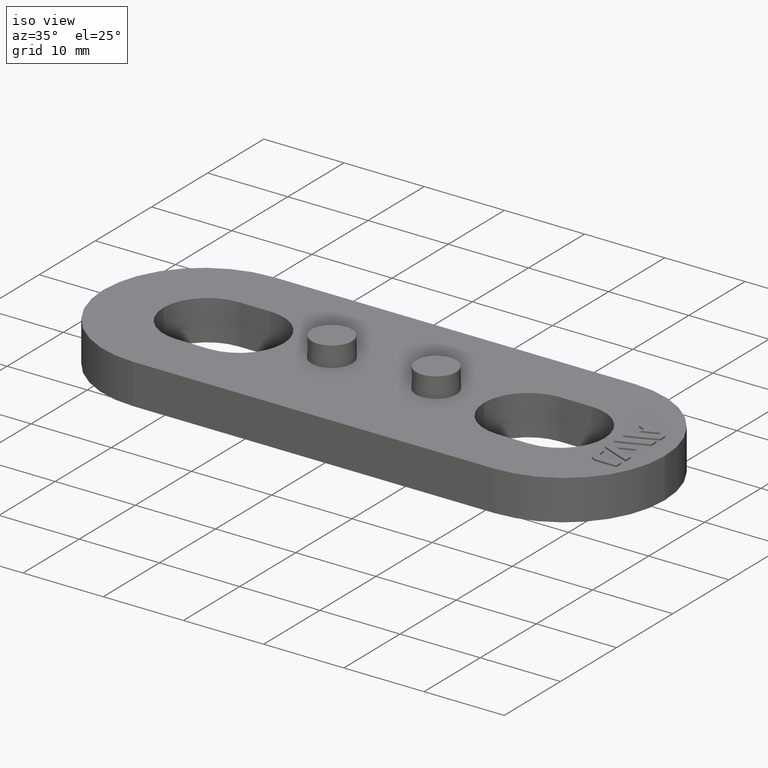
[diagram: clean part render]
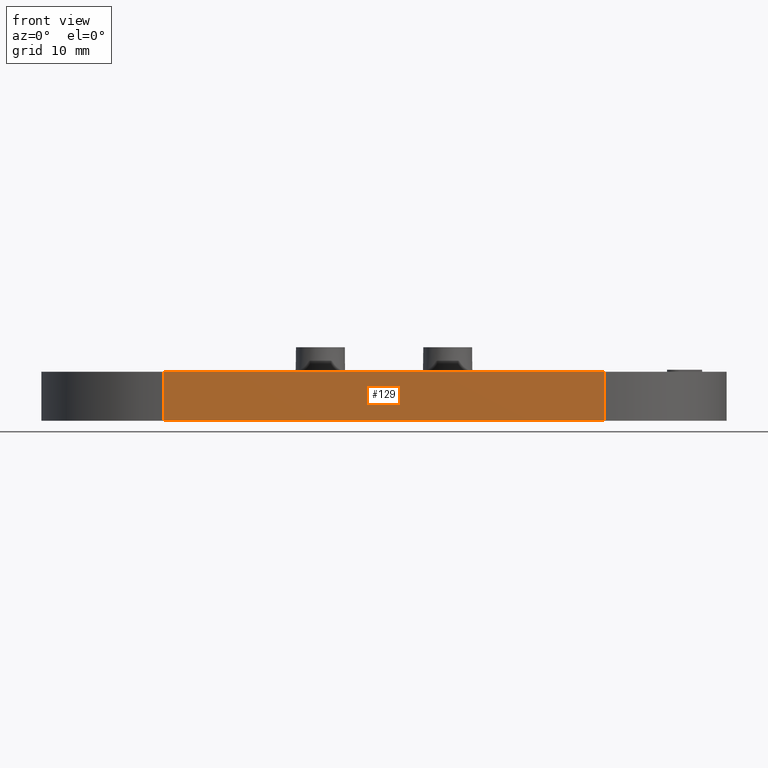
[diagram: tour spotlight — one face highlighted and labeled with its STEP entity id]
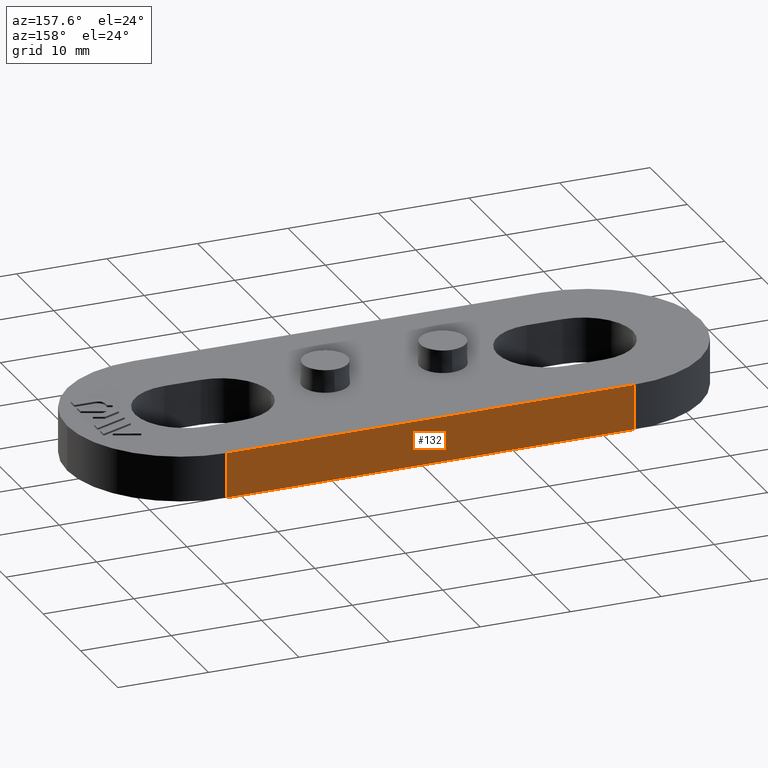
[diagram: tour spotlight — one face highlighted and labeled with its STEP entity id]
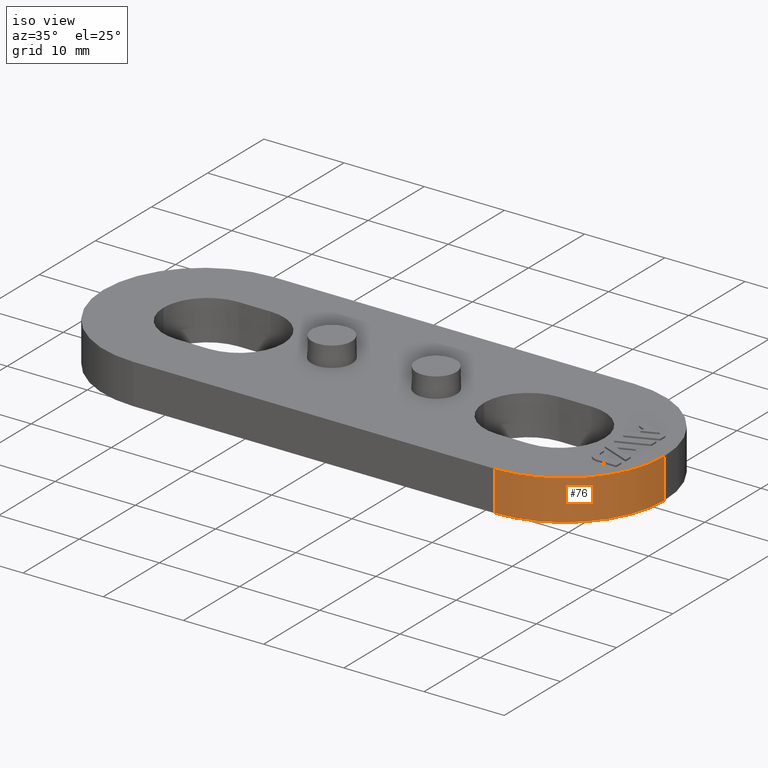
[diagram: tour spotlight — one face highlighted and labeled with its STEP entity id]
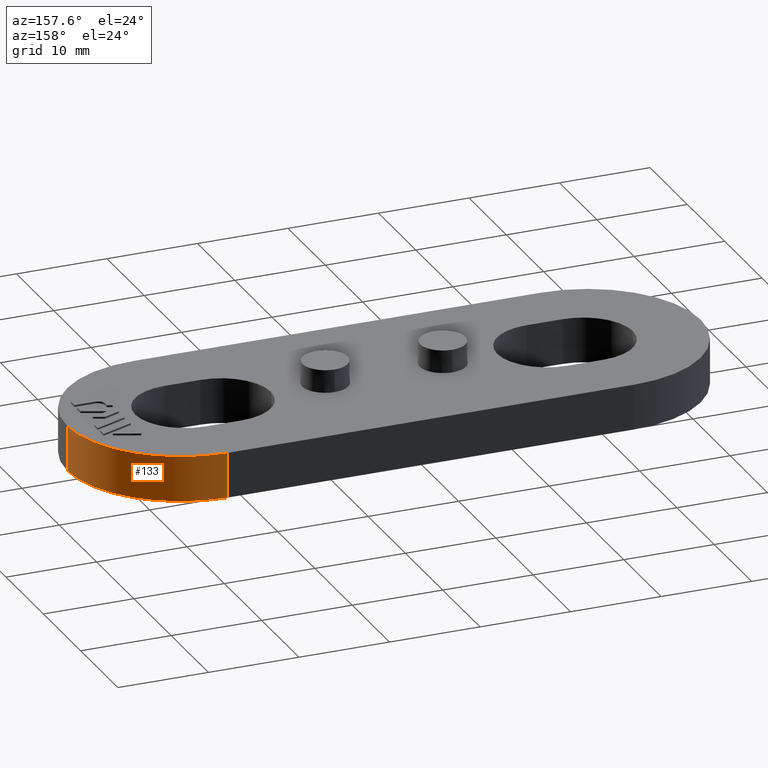
[diagram: tour spotlight — one face highlighted and labeled with its STEP entity id]
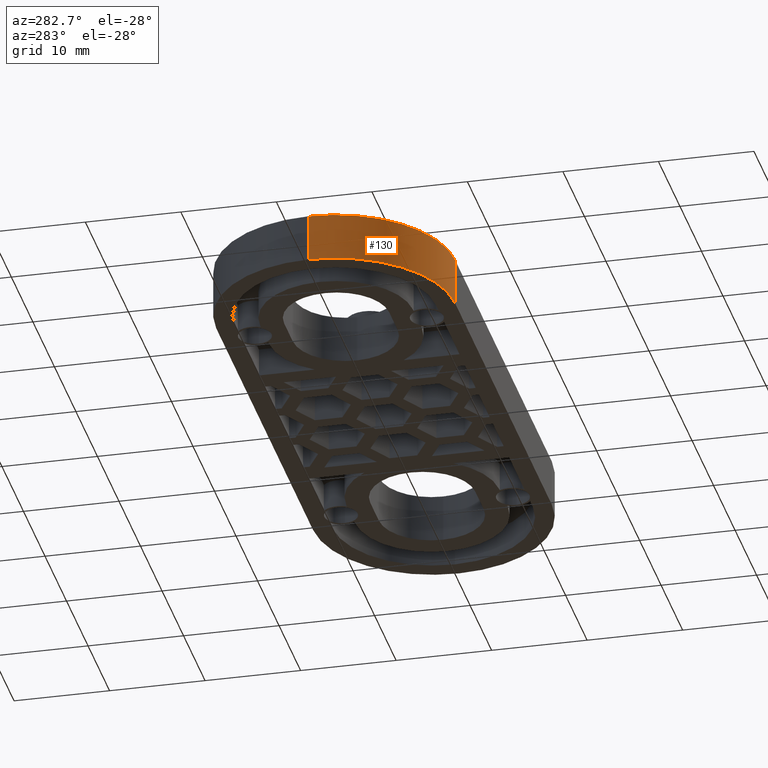
[diagram: tour spotlight — one face highlighted and labeled with its STEP entity id]
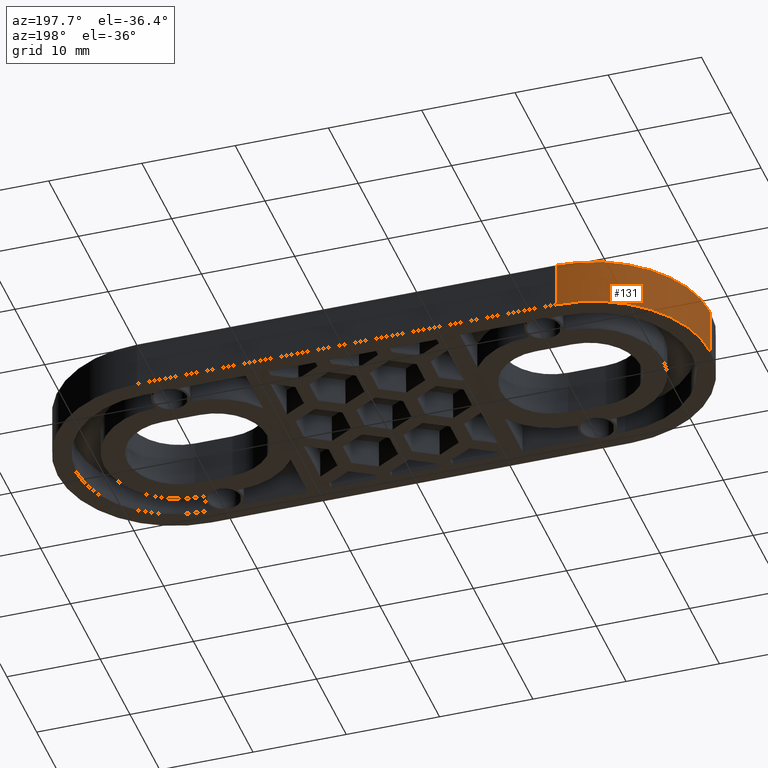
[diagram: tour spotlight — one face highlighted and labeled with its STEP entity id]
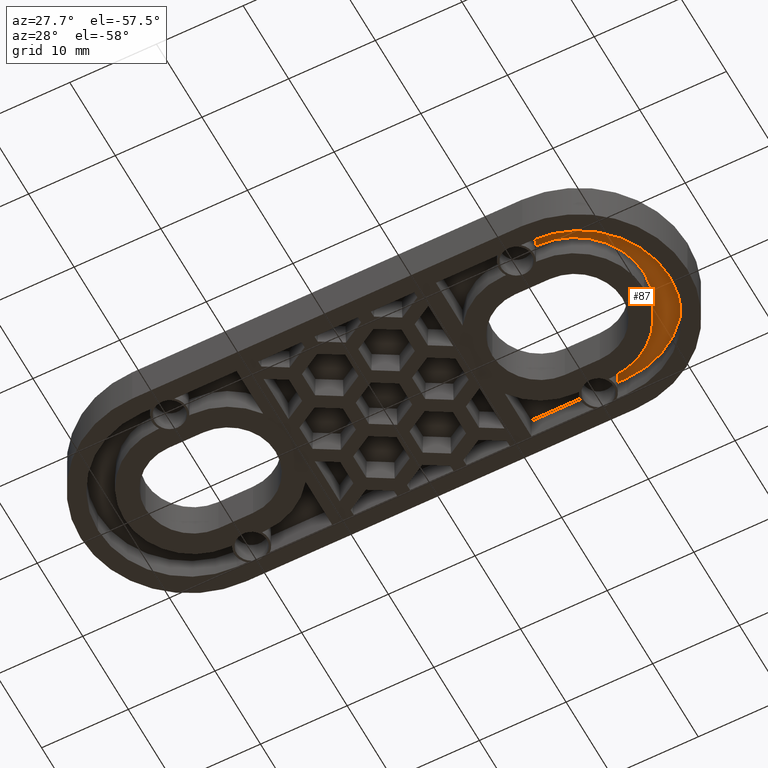
[diagram: tour spotlight — one face highlighted and labeled with its STEP entity id]
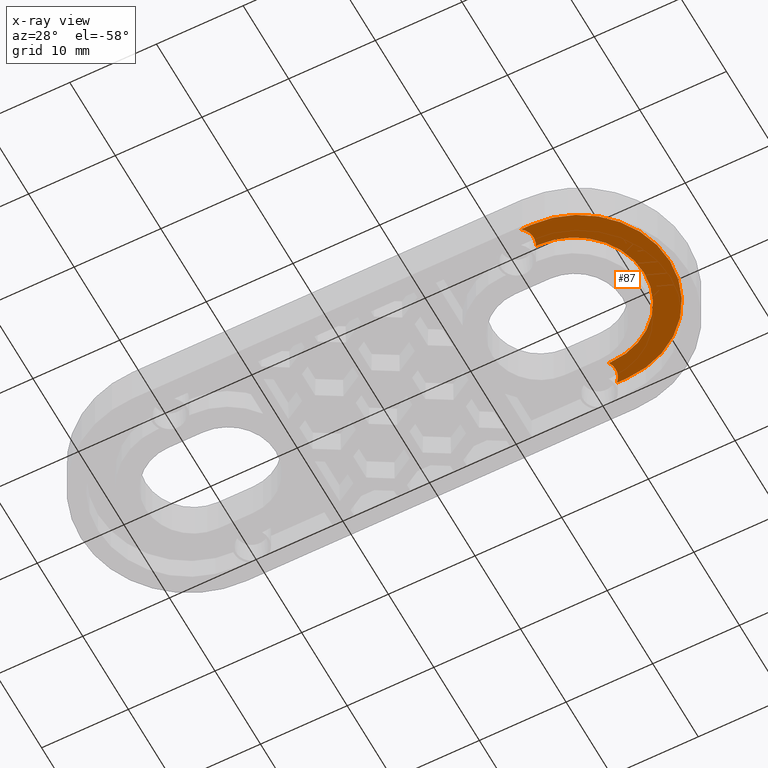
[diagram: x-ray of the same camera — body ghosted, this tour face saturated]
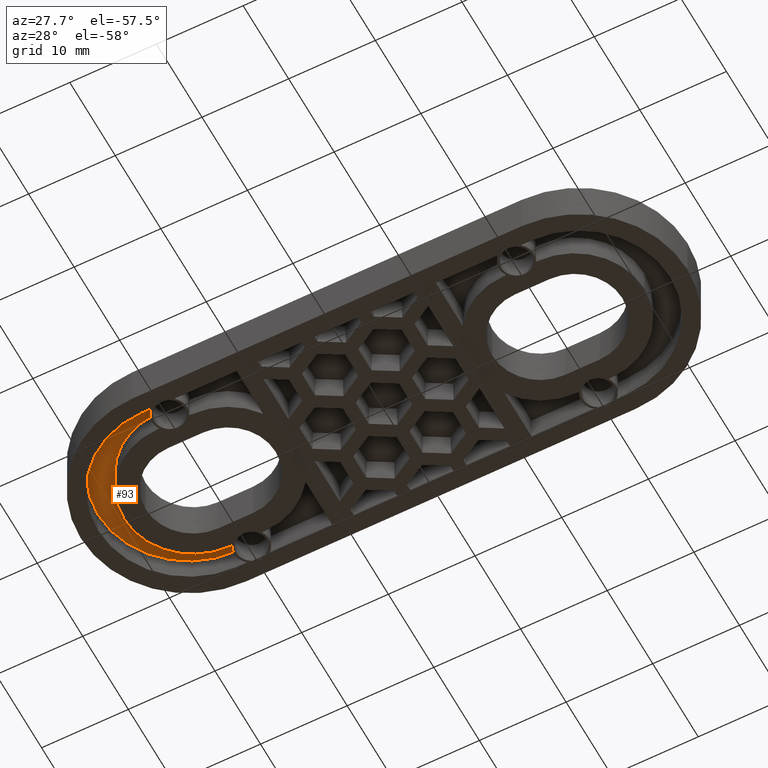
[diagram: tour spotlight — one face highlighted and labeled with its STEP entity id]
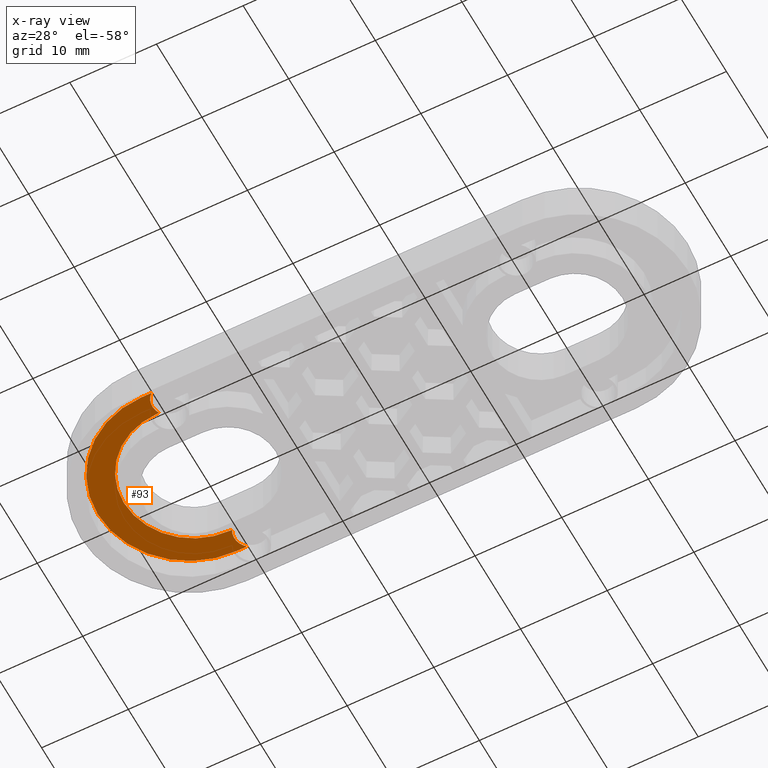
[diagram: x-ray of the same camera — body ghosted, this tour face saturated]
A machine part: a face-by-face anatomy tour. The part has 216 B-rep faces; the first image is the clean iso view, then the 8 largest visible faces are spotlighted one at a time (largest first), each with its STEP entity span.

Face 1 — front view, entity #129. In plain terms, the highlighted planar face has unit normal (0, 1, -0).
Definition (entity closure, byte-faithful):
#129 = ADVANCED_FACE( '', ( #438 ), #439, .F. );
#438 = FACE_OUTER_BOUND( '', #914, .T. );
#439 = PLANE( '', #915 );
#914 = EDGE_LOOP( '', ( #1844, #1845, #1846, #1847 ) );
#915 = AXIS2_PLACEMENT_3D( '', #1848, #1849, #1850 );
#1844 = ORIENTED_EDGE( '', *, *, #2982, .T. );
#1845 = ORIENTED_EDGE( '', *, *, #3337, .F. );
#1846 = ORIENTED_EDGE( '', *, *, #3320, .F. );
#1847 = ORIENTED_EDGE( '', *, *, #3008, .T. );
#1848 = CARTESIAN_POINT( '', ( 22.5000000000000, -12.5000000000000, 0.000000000000000 ) );
#1849 = DIRECTION( '', ( 0.000000000000000, 1.00000000000000, -6.12303176911189E-017 ) );
#1850 = DIRECTION( '', ( 1.00000000000000, 0.000000000000000, 0.000000000000000 ) );
#2982 = EDGE_CURVE( '', #3529, #3537, #3539, .T. );
#3008 = EDGE_CURVE( '', #3590, #3529, #3591, .T. );
#3320 = EDGE_CURVE( '', #3590, #4157, #4158, .T. );
#3337 = EDGE_CURVE( '', #4157, #3537, #4190, .T. );
#3529 = VERTEX_POINT( '', #4436 );
#3537 = VERTEX_POINT( '', #4445 );
#3539 = LINE( '', #4447, #4448 );
#3590 = VERTEX_POINT( '', #4516 );
#3591 = LINE( '', #4517, #4518 );
#4157 = VERTEX_POINT( '', #5349 );
#4158 = LINE( '', #5350, #5351 );
#4190 = LINE( '', #5388, #5389 );
#4436 = CARTESIAN_POINT( '', ( 22.5000000000000, -12.5000000000000, 5.00000000000000 ) );
#4445 = CARTESIAN_POINT( '', ( -22.5000000000000, -12.5000000000000, 5.00000000000000 ) );
#4447 = CARTESIAN_POINT( '', ( 22.5000000000000, -12.5000000000000, 5.00000000000000 ) );
#4448 = VECTOR( '', #5774, 1000.00000000000 );
#4516 = CARTESIAN_POINT( '', ( 22.5000000000000, -12.5000000000000, 0.000000000000000 ) );
#4517 = CARTESIAN_POINT( '', ( 22.5000000000000, -12.5000000000000, 0.000000000000000 ) );
#4518 = VECTOR( '', #5816, 1000.00000000000 );
#5349 = CARTESIAN_POINT( '', ( -22.5000000000000, -12.5000000000000, 0.000000000000000 ) );
#5350 = CARTESIAN_POINT( '', ( 22.5000000000000, -12.5000000000000, 0.000000000000000 ) );
#5351 = VECTOR( '', #6220, 1000.00000000000 );
#5388 = CARTESIAN_POINT( '', ( -22.5000000000000, -12.5000000000000, 0.000000000000000 ) );
#5389 = VECTOR( '', #6259, 1000.00000000000 );
#5774 = DIRECTION( '', ( -1.00000000000000, 0.000000000000000, 0.000000000000000 ) );
#5816 = DIRECTION( '', ( 0.000000000000000, 6.12303176911189E-017, 1.00000000000000 ) );
#6220 = DIRECTION( '', ( -1.00000000000000, 0.000000000000000, 0.000000000000000 ) );
#6259 = DIRECTION( '', ( 0.000000000000000, 6.12303176911189E-017, 1.00000000000000 ) );

Face 2 — auxiliary view, entity #132. In plain terms, the highlighted planar face has unit normal (0, -1, 0).
Definition (entity closure, byte-faithful):
#132 = ADVANCED_FACE( '', ( #444 ), #445, .F. );
#444 = FACE_OUTER_BOUND( '', #920, .T. );
#445 = PLANE( '', #921 );
#920 = EDGE_LOOP( '', ( #1865, #1866, #1867, #1868 ) );
#921 = AXIS2_PLACEMENT_3D( '', #1869, #1870, #1871 );
#1865 = ORIENTED_EDGE( '', *, *, #2979, .T. );
#1866 = ORIENTED_EDGE( '', *, *, #3340, .F. );
#1867 = ORIENTED_EDGE( '', *, *, #3323, .F. );
#1868 = ORIENTED_EDGE( '', *, *, #3339, .T. );
#1869 = CARTESIAN_POINT( '', ( -22.5000000000000, 12.5000000000000, -1.53075794227797E-015 ) );
#1870 = DIRECTION( '', ( 0.000000000000000, -1.00000000000000, 6.12303176911189E-017 ) );
#1871 = DIRECTION( '', ( -1.00000000000000, 0.000000000000000, 0.000000000000000 ) );
#2979 = EDGE_CURVE( '', #3533, #3531, #3534, .T. );
#3323 = EDGE_CURVE( '', #4161, #4163, #4164, .T. );
#3339 = EDGE_CURVE( '', #4161, #3533, #4192, .T. );
#3340 = EDGE_CURVE( '', #4163, #3531, #4193, .T. );
#3531 = VERTEX_POINT( '', #4438 );
#3533 = VERTEX_POINT( '', #4440 );
#3534 = LINE( '', #4441, #4442 );
#4161 = VERTEX_POINT( '', #5354 );
#4163 = VERTEX_POINT( '', #5356 );
#4164 = LINE( '', #5357, #5358 );
#4192 = LINE( '', #5392, #5393 );
#4193 = LINE( '', #5394, #5395 );
#4438 = CARTESIAN_POINT( '', ( 22.5000000000000, 12.5000000000000, 5.00000000000000 ) );
#4440 = CARTESIAN_POINT( '', ( -22.5000000000000, 12.5000000000000, 5.00000000000000 ) );
#4441 = CARTESIAN_POINT( '', ( -22.5000000000000, 12.5000000000000, 5.00000000000000 ) );
#4442 = VECTOR( '', #5767, 1000.00000000000 );
#5354 = CARTESIAN_POINT( '', ( -22.5000000000000, 12.5000000000000, -1.53075794227797E-015 ) );
#5356 = CARTESIAN_POINT( '', ( 22.5000000000000, 12.5000000000000, -1.53075794227797E-015 ) );
#5357 = CARTESIAN_POINT( '', ( -22.5000000000000, 12.5000000000000, -1.53075794227797E-015 ) );
#5358 = VECTOR( '', #6227, 1000.00000000000 );
#5392 = CARTESIAN_POINT( '', ( -22.5000000000000, 12.5000000000000, -1.53075794227797E-015 ) );
#5393 = VECTOR( '', #6261, 1000.00000000000 );
#5394 = CARTESIAN_POINT( '', ( 22.5000000000000, 12.5000000000000, -1.53075794227797E-015 ) );
#5395 = VECTOR( '', #6262, 1000.00000000000 );
#5767 = DIRECTION( '', ( 1.00000000000000, 0.000000000000000, 0.000000000000000 ) );
#6227 = DIRECTION( '', ( 1.00000000000000, 0.000000000000000, 0.000000000000000 ) );
#6261 = DIRECTION( '', ( 0.000000000000000, 6.12303176911189E-017, 1.00000000000000 ) );
#6262 = DIRECTION( '', ( 0.000000000000000, 6.12303176911189E-017, 1.00000000000000 ) );

Face 3 — iso view, entity #76. In plain terms, the highlighted cylindrical surface (partial cylindrical patch) has radius 12.5 mm, axis along (0, -0, -1).
Definition (entity closure, byte-faithful):
#76 = ADVANCED_FACE( '', ( #303 ), #304, .T. );
#303 = FACE_OUTER_BOUND( '', #779, .T. );
#304 = CYLINDRICAL_SURFACE( '', #780, 12.5000000000000 );
#779 = EDGE_LOOP( '', ( #1295, #1296, #1297, #1298 ) );
#780 = AXIS2_PLACEMENT_3D( '', #1299, #1300, #1301 );
#1295 = ORIENTED_EDGE( '', *, *, #2977, .T. );
#1296 = ORIENTED_EDGE( '', *, *, #3008, .F. );
#1297 = ORIENTED_EDGE( '', *, *, #3009, .F. );
#1298 = ORIENTED_EDGE( '', *, *, #3010, .T. );
#1299 = CARTESIAN_POINT( '', ( 22.5000000000000, 0.000000000000000, -7.65378971138986E-016 ) );
#1300 = DIRECTION( '', ( 0.000000000000000, -6.12303176911189E-017, -1.00000000000000 ) );
#1301 = DIRECTION( '', ( 0.000000000000000, 1.00000000000000, -6.12303176911189E-017 ) );
#2977 = EDGE_CURVE( '', #3528, #3529, #3530, .T. );
#3008 = EDGE_CURVE( '', #3590, #3529, #3591, .T. );
#3009 = EDGE_CURVE( '', #3592, #3590, #3593, .T. );
#3010 = EDGE_CURVE( '', #3592, #3528, #3594, .T. );
#3528 = VERTEX_POINT( '', #4435 );
#3529 = VERTEX_POINT( '', #4436 );
#3530 = CIRCLE( '', #4437, 12.5000000000000 );
#3590 = VERTEX_POINT( '', #4516 );
#3591 = LINE( '', #4517, #4518 );
#3592 = VERTEX_POINT( '', #4519 );
#3593 = CIRCLE( '', #4520, 12.5000000000000 );
#3594 = LINE( '', #4521, #4522 );
#4435 = CARTESIAN_POINT( '', ( 35.0000000000000, 0.000000000000000, 5.00000000000000 ) );
#4436 = CARTESIAN_POINT( '', ( 22.5000000000000, -12.5000000000000, 5.00000000000000 ) );
#4437 = AXIS2_PLACEMENT_3D( '', #5761, #5762, #5763 );
#4516 = CARTESIAN_POINT( '', ( 22.5000000000000, -12.5000000000000, 0.000000000000000 ) );
#4517 = CARTESIAN_POINT( '', ( 22.5000000000000, -12.5000000000000, 0.000000000000000 ) );
#4518 = VECTOR( '', #5816, 1000.00000000000 );
#4519 = CARTESIAN_POINT( '', ( 35.0000000000000, 0.000000000000000, -7.65378971138986E-016 ) );
#4520 = AXIS2_PLACEMENT_3D( '', #5817, #5818, #5819 );
#4521 = CARTESIAN_POINT( '', ( 35.0000000000000, 0.000000000000000, -7.65378971138986E-016 ) );
#4522 = VECTOR( '', #5820, 1000.00000000000 );
#5761 = CARTESIAN_POINT( '', ( 22.5000000000000, 0.000000000000000, 5.00000000000000 ) );
#5762 = DIRECTION( '', ( 0.000000000000000, -6.12303176911189E-017, -1.00000000000000 ) );
#5763 = DIRECTION( '', ( 0.000000000000000, 1.00000000000000, -6.12303176911189E-017 ) );
#5816 = DIRECTION( '', ( 0.000000000000000, 6.12303176911189E-017, 1.00000000000000 ) );
#5817 = CARTESIAN_POINT( '', ( 22.5000000000000, 0.000000000000000, -7.65378971138986E-016 ) );
#5818 = DIRECTION( '', ( 0.000000000000000, -6.12303176911189E-017, -1.00000000000000 ) );
#5819 = DIRECTION( '', ( 0.000000000000000, 1.00000000000000, -6.12303176911189E-017 ) );
#5820 = DIRECTION( '', ( 0.000000000000000, 6.12303176911189E-017, 1.00000000000000 ) );

Face 4 — auxiliary view, entity #133. In plain terms, the highlighted cylindrical surface (partial cylindrical patch) has radius 12.5 mm, axis along (0, -0, -1).
Definition (entity closure, byte-faithful):
#133 = ADVANCED_FACE( '', ( #446 ), #447, .T. );
#446 = FACE_OUTER_BOUND( '', #922, .T. );
#447 = CYLINDRICAL_SURFACE( '', #923, 12.5000000000000 );
#922 = EDGE_LOOP( '', ( #1872, #1873, #1874, #1875 ) );
#923 = AXIS2_PLACEMENT_3D( '', #1876, #1877, #1878 );
#1872 = ORIENTED_EDGE( '', *, *, #2978, .T. );
#1873 = ORIENTED_EDGE( '', *, *, #3010, .F. );
#1874 = ORIENTED_EDGE( '', *, *, #3324, .F. );
#1875 = ORIENTED_EDGE( '', *, *, #3340, .T. );
#1876 = CARTESIAN_POINT( '', ( 22.5000000000000, 0.000000000000000, -7.65378971138986E-016 ) );
#1877 = DIRECTION( '', ( 0.000000000000000, -6.12303176911189E-017, -1.00000000000000 ) );
#1878 = DIRECTION( '', ( 0.000000000000000, 1.00000000000000, -6.12303176911189E-017 ) );
#2978 = EDGE_CURVE( '', #3531, #3528, #3532, .T. );
#3010 = EDGE_CURVE( '', #3592, #3528, #3594, .T. );
#3324 = EDGE_CURVE( '', #4163, #3592, #4165, .T. );
#3340 = EDGE_CURVE( '', #4163, #3531, #4193, .T. );
#3528 = VERTEX_POINT( '', #4435 );
#3531 = VERTEX_POINT( '', #4438 );
#3532 = CIRCLE( '', #4439, 12.5000000000000 );
#3592 = VERTEX_POINT( '', #4519 );
#3594 = LINE( '', #4521, #4522 );
#4163 = VERTEX_POINT( '', #5356 );
#4165 = CIRCLE( '', #5359, 12.5000000000000 );
#4193 = LINE( '', #5394, #5395 );
#4435 = CARTESIAN_POINT( '', ( 35.0000000000000, 0.000000000000000, 5.00000000000000 ) );
#4438 = CARTESIAN_POINT( '', ( 22.5000000000000, 12.5000000000000, 5.00000000000000 ) );
#4439 = AXIS2_PLACEMENT_3D( '', #5764, #5765, #5766 );
#4519 = CARTESIAN_POINT( '', ( 35.0000000000000, 0.000000000000000, -7.65378971138986E-016 ) );
#4521 = CARTESIAN_POINT( '', ( 35.0000000000000, 0.000000000000000, -7.65378971138986E-016 ) );
#4522 = VECTOR( '', #5820, 1000.00000000000 );
#5356 = CARTESIAN_POINT( '', ( 22.5000000000000, 12.5000000000000, -1.53075794227797E-015 ) );
#5359 = AXIS2_PLACEMENT_3D( '', #6228, #6229, #6230 );
#5394 = CARTESIAN_POINT( '', ( 22.5000000000000, 12.5000000000000, -1.53075794227797E-015 ) );
#5395 = VECTOR( '', #6262, 1000.00000000000 );
#5764 = CARTESIAN_POINT( '', ( 22.5000000000000, 0.000000000000000, 5.00000000000000 ) );
#5765 = DIRECTION( '', ( 0.000000000000000, -6.12303176911189E-017, -1.00000000000000 ) );
#5766 = DIRECTION( '', ( 0.000000000000000, 1.00000000000000, -6.12303176911189E-017 ) );
#5820 = DIRECTION( '', ( 0.000000000000000, 6.12303176911189E-017, 1.00000000000000 ) );
#6228 = CARTESIAN_POINT( '', ( 22.5000000000000, 0.000000000000000, -7.65378971138986E-016 ) );
#6229 = DIRECTION( '', ( 0.000000000000000, -6.12303176911189E-017, -1.00000000000000 ) );
#6230 = DIRECTION( '', ( 0.000000000000000, 1.00000000000000, -6.12303176911189E-017 ) );
#6262 = DIRECTION( '', ( 0.000000000000000, 6.12303176911189E-017, 1.00000000000000 ) );

Face 5 — auxiliary view, entity #130. In plain terms, the highlighted cylindrical surface (partial cylindrical patch) has radius 12.5 mm, axis along (0, -0, -1).
Definition (entity closure, byte-faithful):
#130 = ADVANCED_FACE( '', ( #440 ), #441, .T. );
#440 = FACE_OUTER_BOUND( '', #916, .T. );
#441 = CYLINDRICAL_SURFACE( '', #917, 12.5000000000000 );
#916 = EDGE_LOOP( '', ( #1851, #1852, #1853, #1854 ) );
#917 = AXIS2_PLACEMENT_3D( '', #1855, #1856, #1857 );
#1851 = ORIENTED_EDGE( '', *, *, #2981, .T. );
#1852 = ORIENTED_EDGE( '', *, *, #3338, .F. );
#1853 = ORIENTED_EDGE( '', *, *, #3321, .F. );
#1854 = ORIENTED_EDGE( '', *, *, #3337, .T. );
#1855 = CARTESIAN_POINT( '', ( -22.5000000000000, 0.000000000000000, -7.65378971138986E-016 ) );
#1856 = DIRECTION( '', ( 0.000000000000000, -6.12303176911189E-017, -1.00000000000000 ) );
#1857 = DIRECTION( '', ( 0.000000000000000, 1.00000000000000, -6.12303176911189E-017 ) );
#2981 = EDGE_CURVE( '', #3537, #3535, #3538, .T. );
#3321 = EDGE_CURVE( '', #4157, #4159, #4160, .T. );
#3337 = EDGE_CURVE( '', #4157, #3537, #4190, .T. );
#3338 = EDGE_CURVE( '', #4159, #3535, #4191, .T. );
#3535 = VERTEX_POINT( '', #4443 );
#3537 = VERTEX_POINT( '', #4445 );
#3538 = CIRCLE( '', #4446, 12.5000000000000 );
#4157 = VERTEX_POINT( '', #5349 );
#4159 = VERTEX_POINT( '', #5352 );
#4160 = CIRCLE( '', #5353, 12.5000000000000 );
#4190 = LINE( '', #5388, #5389 );
#4191 = LINE( '', #5390, #5391 );
#4443 = CARTESIAN_POINT( '', ( -35.0000000000000, -1.73472347597681E-015, 5.00000000000000 ) );
#4445 = CARTESIAN_POINT( '', ( -22.5000000000000, -12.5000000000000, 5.00000000000000 ) );
#4446 = AXIS2_PLACEMENT_3D( '', #5771, #5772, #5773 );
#5349 = CARTESIAN_POINT( '', ( -22.5000000000000, -12.5000000000000, 0.000000000000000 ) );
#5352 = CARTESIAN_POINT( '', ( -35.0000000000000, -1.73472347597681E-015, -7.65378971138986E-016 ) );
#5353 = AXIS2_PLACEMENT_3D( '', #6221, #6222, #6223 );
#5388 = CARTESIAN_POINT( '', ( -22.5000000000000, -12.5000000000000, 0.000000000000000 ) );
#5389 = VECTOR( '', #6259, 1000.00000000000 );
#5390 = CARTESIAN_POINT( '', ( -35.0000000000000, -1.73472347597681E-015, -7.65378971138986E-016 ) );
#5391 = VECTOR( '', #6260, 1000.00000000000 );
#5771 = CARTESIAN_POINT( '', ( -22.5000000000000, 0.000000000000000, 5.00000000000000 ) );
#5772 = DIRECTION( '', ( 0.000000000000000, -6.12303176911189E-017, -1.00000000000000 ) );
#5773 = DIRECTION( '', ( 0.000000000000000, 1.00000000000000, -6.12303176911189E-017 ) );
#6221 = CARTESIAN_POINT( '', ( -22.5000000000000, 0.000000000000000, -7.65378971138986E-016 ) );
#6222 = DIRECTION( '', ( 0.000000000000000, -6.12303176911189E-017, -1.00000000000000 ) );
#6223 = DIRECTION( '', ( 0.000000000000000, 1.00000000000000, -6.12303176911189E-017 ) );
#6259 = DIRECTION( '', ( 0.000000000000000, 6.12303176911189E-017, 1.00000000000000 ) );
#6260 = DIRECTION( '', ( 0.000000000000000, 6.12303176911189E-017, 1.00000000000000 ) );

Face 6 — auxiliary view, entity #131. In plain terms, the highlighted cylindrical surface (partial cylindrical patch) has radius 12.5 mm, axis along (0, -0, -1).
Definition (entity closure, byte-faithful):
#131 = ADVANCED_FACE( '', ( #442 ), #443, .T. );
#442 = FACE_OUTER_BOUND( '', #918, .T. );
#443 = CYLINDRICAL_SURFACE( '', #919, 12.5000000000000 );
#918 = EDGE_LOOP( '', ( #1858, #1859, #1860, #1861 ) );
#919 = AXIS2_PLACEMENT_3D( '', #1862, #1863, #1864 );
#1858 = ORIENTED_EDGE( '', *, *, #2980, .T. );
#1859 = ORIENTED_EDGE( '', *, *, #3339, .F. );
#1860 = ORIENTED_EDGE( '', *, *, #3322, .F. );
#1861 = ORIENTED_EDGE( '', *, *, #3338, .T. );
#1862 = CARTESIAN_POINT( '', ( -22.5000000000000, 0.000000000000000, -7.65378971138986E-016 ) );
#1863 = DIRECTION( '', ( 0.000000000000000, -6.12303176911189E-017, -1.00000000000000 ) );
#1864 = DIRECTION( '', ( 0.000000000000000, 1.00000000000000, -6.12303176911189E-017 ) );
#2980 = EDGE_CURVE( '', #3535, #3533, #3536, .T. );
#3322 = EDGE_CURVE( '', #4159, #4161, #4162, .T. );
#3338 = EDGE_CURVE( '', #4159, #3535, #4191, .T. );
#3339 = EDGE_CURVE( '', #4161, #3533, #4192, .T. );
#3533 = VERTEX_POINT( '', #4440 );
#3535 = VERTEX_POINT( '', #4443 );
#3536 = CIRCLE( '', #4444, 12.5000000000000 );
#4159 = VERTEX_POINT( '', #5352 );
#4161 = VERTEX_POINT( '', #5354 );
#4162 = CIRCLE( '', #5355, 12.5000000000000 );
#4191 = LINE( '', #5390, #5391 );
#4192 = LINE( '', #5392, #5393 );
#4440 = CARTESIAN_POINT( '', ( -22.5000000000000, 12.5000000000000, 5.00000000000000 ) );
#4443 = CARTESIAN_POINT( '', ( -35.0000000000000, -1.73472347597681E-015, 5.00000000000000 ) );
#4444 = AXIS2_PLACEMENT_3D( '', #5768, #5769, #5770 );
#5352 = CARTESIAN_POINT( '', ( -35.0000000000000, -1.73472347597681E-015, -7.65378971138986E-016 ) );
#5354 = CARTESIAN_POINT( '', ( -22.5000000000000, 12.5000000000000, -1.53075794227797E-015 ) );
#5355 = AXIS2_PLACEMENT_3D( '', #6224, #6225, #6226 );
#5390 = CARTESIAN_POINT( '', ( -35.0000000000000, -1.73472347597681E-015, -7.65378971138986E-016 ) );
#5391 = VECTOR( '', #6260, 1000.00000000000 );
#5392 = CARTESIAN_POINT( '', ( -22.5000000000000, 12.5000000000000, -1.53075794227797E-015 ) );
#5393 = VECTOR( '', #6261, 1000.00000000000 );
#5768 = CARTESIAN_POINT( '', ( -22.5000000000000, 0.000000000000000, 5.00000000000000 ) );
#5769 = DIRECTION( '', ( 0.000000000000000, -6.12303176911189E-017, -1.00000000000000 ) );
#5770 = DIRECTION( '', ( 0.000000000000000, 1.00000000000000, -6.12303176911189E-017 ) );
#6224 = CARTESIAN_POINT( '', ( -22.5000000000000, 0.000000000000000, -7.65378971138986E-016 ) );
#6225 = DIRECTION( '', ( 0.000000000000000, -6.12303176911189E-017, -1.00000000000000 ) );
#6226 = DIRECTION( '', ( 0.000000000000000, 1.00000000000000, -6.12303176911189E-017 ) );
#6260 = DIRECTION( '', ( 0.000000000000000, 6.12303176911189E-017, 1.00000000000000 ) );
#6261 = DIRECTION( '', ( 0.000000000000000, 6.12303176911189E-017, 1.00000000000000 ) );

Face 7 — auxiliary view, entity #87. An x-ray twin of the same camera follows (body ghosted, this face saturated) — the face is partly hidden behind the body. In plain terms, the highlighted planar face has unit normal (0, -0, -1).
Definition (entity closure, byte-faithful):
#87 = ADVANCED_FACE( '', ( #325 ), #326, .T. );
#325 = FACE_OUTER_BOUND( '', #801, .T. );
#326 = PLANE( '', #802 );
#801 = EDGE_LOOP( '', ( #1374, #1375, #1376, #1377, #1378, #1379, #1380, #1381, #1382, #1383 ) );
#802 = AXIS2_PLACEMENT_3D( '', #1384, #1385, #1386 );
#1374 = ORIENTED_EDGE( '', *, *, #3044, .F. );
#1375 = ORIENTED_EDGE( '', *, *, #3045, .F. );
#1376 = ORIENTED_EDGE( '', *, *, #3046, .F. );
#1377 = ORIENTED_EDGE( '', *, *, #3047, .F. );
#1378 = ORIENTED_EDGE( '', *, *, #3048, .F. );
#1379 = ORIENTED_EDGE( '', *, *, #3049, .F. );
#1380 = ORIENTED_EDGE( '', *, *, #3050, .T. );
#1381 = ORIENTED_EDGE( '', *, *, #3051, .T. );
#1382 = ORIENTED_EDGE( '', *, *, #3052, .T. );
#1383 = ORIENTED_EDGE( '', *, *, #3021, .T. );
#1384 = CARTESIAN_POINT( '', ( 22.5000000000000, 0.000000000000000, 3.00000000000000 ) );
#1385 = DIRECTION( '', ( 0.000000000000000, -6.12303176911189E-017, -1.00000000000000 ) );
#1386 = DIRECTION( '', ( 0.000000000000000, -1.00000000000000, 6.12303176911189E-017 ) );
#3021 = EDGE_CURVE( '', #3612, #3609, #3613, .T. );
#3044 = EDGE_CURVE( '', #3655, #3609, #3656, .T. );
#3045 = EDGE_CURVE( '', #3657, #3655, #3658, .T. );
#3046 = EDGE_CURVE( '', #3659, #3657, #3660, .T. );
#3047 = EDGE_CURVE( '', #3661, #3659, #3662, .T. );
#3048 = EDGE_CURVE( '', #3663, #3661, #3664, .T. );
#3049 = EDGE_CURVE( '', #3665, #3663, #3666, .T. );
#3050 = EDGE_CURVE( '', #3665, #3667, #3668, .T. );
#3051 = EDGE_CURVE( '', #3667, #3669, #3670, .T. );
#3052 = EDGE_CURVE( '', #3669, #3612, #3671, .T. );
#3609 = VERTEX_POINT( '', #4545 );
#3612 = VERTEX_POINT( '', #4549 );
#3613 = LINE( '', #4550, #4551 );
#3655 = VERTEX_POINT( '', #4611 );
#3656 = CIRCLE( '', #4612, 2.00000000000000 );
#3657 = VERTEX_POINT( '', #4613 );
#3658 = LINE( '', #4614, #4615 );
#3659 = VERTEX_POINT( '', #4616 );
#3660 = CIRCLE( '', #4617, 7.99999999999999 );
#3661 = VERTEX_POINT( '', #4618 );
#3662 = CIRCLE( '', #4619, 8.00000000000000 );
#3663 = VERTEX_POINT( '', #4620 );
#3664 = LINE( '', #4621, #4622 );
#3665 = VERTEX_POINT( '', #4623 );
#3666 = CIRCLE( '', #4624, 2.00000000000000 );
#3667 = VERTEX_POINT( '', #4625 );
#3668 = LINE( '', #4626, #4627 );
#3669 = VERTEX_POINT( '', #4628 );
#3670 = CIRCLE( '', #4629, 10.5000000000000 );
#3671 = CIRCLE( '', #4630, 10.5000000000000 );
#4545 = CARTESIAN_POINT( '', ( 21.3228756555323, -10.5000000000000, 3.00000000000000 ) );
#4549 = CARTESIAN_POINT( '', ( 22.5000000000000, -10.5000000000000, 3.00000000000000 ) );
#4550 = CARTESIAN_POINT( '', ( 22.5000000000000, -10.5000000000000, 3.00000000000000 ) );
#4551 = VECTOR( '', #5833, 1000.00000000000 );
#4611 = CARTESIAN_POINT( '', ( 21.7320508075689, -7.99999999999999, 3.00000000000000 ) );
#4612 = AXIS2_PLACEMENT_3D( '', #5864, #5865, #5866 );
#4613 = CARTESIAN_POINT( '', ( 22.0000000000000, -7.99999999999999, 3.00000000000000 ) );
#4614 = CARTESIAN_POINT( '', ( 22.5000000000000, -7.99999999999999, 3.00000000000000 ) );
#4615 = VECTOR( '', #5867, 1000.00000000000 );
#4616 = CARTESIAN_POINT( '', ( 30.0000000000000, 3.46944695195361E-015, 3.00000000000000 ) );
#4617 = AXIS2_PLACEMENT_3D( '', #5868, #5869, #5870 );
#4618 = CARTESIAN_POINT( '', ( 22.0000000000000, 8.00000000000000, 3.00000000000000 ) );
#4619 = AXIS2_PLACEMENT_3D( '', #5871, #5872, #5873 );
#4620 = CARTESIAN_POINT( '', ( 21.7320508075689, 8.00000000000000, 3.00000000000000 ) );
#4621 = CARTESIAN_POINT( '', ( 22.5000000000000, 8.00000000000000, 3.00000000000000 ) );
#4622 = VECTOR( '', #5874, 1000.00000000000 );
#4623 = CARTESIAN_POINT( '', ( 21.3228756555323, 10.5000000000000, 3.00000000000000 ) );
#4624 = AXIS2_PLACEMENT_3D( '', #5875, #5876, #5877 );
#4625 = CARTESIAN_POINT( '', ( 22.5000000000000, 10.5000000000000, 3.00000000000000 ) );
#4626 = CARTESIAN_POINT( '', ( -22.5000000000000, 10.5000000000000, 3.00000000000000 ) );
#4627 = VECTOR( '', #5878, 1000.00000000000 );
#4628 = CARTESIAN_POINT( '', ( 33.0000000000000, 0.000000000000000, 3.00000000000000 ) );
#4629 = AXIS2_PLACEMENT_3D( '', #5879, #5880, #5881 );
#4630 = AXIS2_PLACEMENT_3D( '', #5882, #5883, #5884 );
#5833 = DIRECTION( '', ( -1.00000000000000, 0.000000000000000, 0.000000000000000 ) );
#5864 = CARTESIAN_POINT( '', ( 20.0000000000000, -9.00000000000000, 3.00000000000000 ) );
#5865 = DIRECTION( '', ( 6.84227765783601E-049, -6.12303176911189E-017, -1.00000000000000 ) );
#5866 = DIRECTION( '', ( 1.00000000000000, 6.12303176911189E-017, -3.74915180455534E-033 ) );
#5867 = DIRECTION( '', ( -1.00000000000000, -5.78241158658936E-017, 3.54058898467673E-033 ) );
#5868 = CARTESIAN_POINT( '', ( 22.0000000000000, 3.46944695195361E-015, 3.00000000000000 ) );
#5869 = DIRECTION( '', ( 0.000000000000000, -6.12303176911189E-017, -1.00000000000000 ) );
#5870 = DIRECTION( '', ( 0.000000000000000, 1.00000000000000, -6.12303176911189E-017 ) );
#5871 = CARTESIAN_POINT( '', ( 22.0000000000000, 1.73472347597681E-015, 3.00000000000000 ) );
#5872 = DIRECTION( '', ( 0.000000000000000, -6.12303176911189E-017, -1.00000000000000 ) );
#5873 = DIRECTION( '', ( 0.000000000000000, 1.00000000000000, -6.12303176911189E-017 ) );
#5874 = DIRECTION( '', ( 1.00000000000000, 5.78241158658936E-017, -3.54058898467673E-033 ) );
#5875 = CARTESIAN_POINT( '', ( 20.0000000000000, 9.00000000000001, 3.00000000000000 ) );
#5876 = DIRECTION( '', ( 6.84227765783601E-049, -6.12303176911189E-017, -1.00000000000000 ) );
#5877 = DIRECTION( '', ( 1.00000000000000, 6.12303176911189E-017, -3.74915180455534E-033 ) );
#5878 = DIRECTION( '', ( 1.00000000000000, 0.000000000000000, 0.000000000000000 ) );
#5879 = CARTESIAN_POINT( '', ( 22.5000000000000, 0.000000000000000, 3.00000000000000 ) );
#5880 = DIRECTION( '', ( 0.000000000000000, -6.12303176911189E-017, -1.00000000000000 ) );
#5881 = DIRECTION( '', ( 0.000000000000000, 1.00000000000000, -6.12303176911189E-017 ) );
#5882 = CARTESIAN_POINT( '', ( 22.5000000000000, 0.000000000000000, 3.00000000000000 ) );
#5883 = DIRECTION( '', ( 0.000000000000000, -6.12303176911189E-017, -1.00000000000000 ) );
#5884 = DIRECTION( '', ( 0.000000000000000, 1.00000000000000, -6.12303176911189E-017 ) );

Face 8 — auxiliary view, entity #93. An x-ray twin of the same camera follows (body ghosted, this face saturated) — the face is partly hidden behind the body. In plain terms, the highlighted planar face has unit normal (0, -0, -1).
Definition (entity closure, byte-faithful):
#93 = ADVANCED_FACE( '', ( #337 ), #338, .T. );
#337 = FACE_OUTER_BOUND( '', #813, .T. );
#338 = PLANE( '', #814 );
#813 = EDGE_LOOP( '', ( #1422, #1423, #1424, #1425, #1426, #1427, #1428, #1429, #1430, #1431 ) );
#814 = AXIS2_PLACEMENT_3D( '', #1432, #1433, #1434 );
#1422 = ORIENTED_EDGE( '', *, *, #3069, .F. );
#1423 = ORIENTED_EDGE( '', *, *, #3070, .F. );
#1424 = ORIENTED_EDGE( '', *, *, #3071, .F. );
#1425 = ORIENTED_EDGE( '', *, *, #3072, .F. );
#1426 = ORIENTED_EDGE( '', *, *, #3073, .F. );
#1427 = ORIENTED_EDGE( '', *, *, #3074, .F. );
#1428 = ORIENTED_EDGE( '', *, *, #3075, .T. );
#1429 = ORIENTED_EDGE( '', *, *, #3076, .T. );
#1430 = ORIENTED_EDGE( '', *, *, #3077, .T. );
#1431 = ORIENTED_EDGE( '', *, *, #3060, .T. );
#1432 = CARTESIAN_POINT( '', ( 22.5000000000000, 0.000000000000000, 3.00000000000000 ) );
#1433 = DIRECTION( '', ( 0.000000000000000, -6.12303176911189E-017, -1.00000000000000 ) );
#1434 = DIRECTION( '', ( 0.000000000000000, -1.00000000000000, 6.12303176911189E-017 ) );
#3060 = EDGE_CURVE( '', #3685, #3682, #3686, .T. );
#3069 = EDGE_CURVE( '', #3700, #3682, #3701, .T. );
#3070 = EDGE_CURVE( '', #3702, #3700, #3703, .T. );
#3071 = EDGE_CURVE( '', #3704, #3702, #3705, .T. );
#3072 = EDGE_CURVE( '', #3706, #3704, #3707, .T. );
#3073 = EDGE_CURVE( '', #3708, #3706, #3709, .T. );
#3074 = EDGE_CURVE( '', #3710, #3708, #3711, .T. );
#3075 = EDGE_CURVE( '', #3710, #3712, #3713, .T. );
#3076 = EDGE_CURVE( '', #3712, #3714, #3715, .T. );
#3077 = EDGE_CURVE( '', #3714, #3685, #3716, .T. );
#3682 = VERTEX_POINT( '', #4647 );
#3685 = VERTEX_POINT( '', #4651 );
#3686 = LINE( '', #4652, #4653 );
#3700 = VERTEX_POINT( '', #4675 );
#3701 = CIRCLE( '', #4676, 2.00000000000000 );
#3702 = VERTEX_POINT( '', #4677 );
#3703 = LINE( '', #4678, #4679 );
#3704 = VERTEX_POINT( '', #4680 );
#3705 = CIRCLE( '', #4681, 8.00000000000000 );
#3706 = VERTEX_POINT( '', #4682 );
#3707 = CIRCLE( '', #4683, 8.00000000000000 );
#3708 = VERTEX_POINT( '', #4684 );
#3709 = LINE( '', #4685, #4686 );
#3710 = VERTEX_POINT( '', #4687 );
#3711 = CIRCLE( '', #4688, 2.00000000000000 );
#3712 = VERTEX_POINT( '', #4689 );
#3713 = LINE( '', #4690, #4691 );
#3714 = VERTEX_POINT( '', #4692 );
#3715 = CIRCLE( '', #4693, 10.5000000000000 );
#3716 = CIRCLE( '', #4694, 10.5000000000000 );
#4647 = CARTESIAN_POINT( '', ( -21.3228756555323, 10.5000000000000, 3.00000000000000 ) );
#4651 = CARTESIAN_POINT( '', ( -22.5000000000000, 10.5000000000000, 3.00000000000000 ) );
#4652 = CARTESIAN_POINT( '', ( -22.5000000000000, 10.5000000000000, 3.00000000000000 ) );
#4653 = VECTOR( '', #5892, 1000.00000000000 );
#4675 = CARTESIAN_POINT( '', ( -21.7320508075688, 8.00000000000000, 3.00000000000000 ) );
#4676 = AXIS2_PLACEMENT_3D( '', #5901, #5902, #5903 );
#4677 = CARTESIAN_POINT( '', ( -22.0000000000000, 8.00000000000000, 3.00000000000000 ) );
#4678 = CARTESIAN_POINT( '', ( 22.5000000000000, 8.00000000000000, 3.00000000000000 ) );
#4679 = VECTOR( '', #5904, 1000.00000000000 );
#4680 = CARTESIAN_POINT( '', ( -30.0000000000000, 6.93889390390723E-015, 3.00000000000000 ) );
#4681 = AXIS2_PLACEMENT_3D( '', #5905, #5906, #5907 );
#4682 = CARTESIAN_POINT( '', ( -22.0000000000000, -7.99999999999999, 3.00000000000000 ) );
#4683 = AXIS2_PLACEMENT_3D( '', #5908, #5909, #5910 );
#4684 = CARTESIAN_POINT( '', ( -21.7320508075688, -7.99999999999999, 3.00000000000000 ) );
#4685 = CARTESIAN_POINT( '', ( 22.5000000000000, -7.99999999999999, 3.00000000000000 ) );
#4686 = VECTOR( '', #5911, 1000.00000000000 );
#4687 = CARTESIAN_POINT( '', ( -21.3228756555323, -10.5000000000000, 3.00000000000000 ) );
#4688 = AXIS2_PLACEMENT_3D( '', #5912, #5913, #5914 );
#4689 = CARTESIAN_POINT( '', ( -22.5000000000000, -10.5000000000000, 3.00000000000000 ) );
#4690 = CARTESIAN_POINT( '', ( 22.5000000000000, -10.5000000000000, 3.00000000000000 ) );
#4691 = VECTOR( '', #5915, 1000.00000000000 );
#4692 = CARTESIAN_POINT( '', ( -33.0000000000000, -1.73472347597681E-015, 3.00000000000000 ) );
#4693 = AXIS2_PLACEMENT_3D( '', #5916, #5917, #5918 );
#4694 = AXIS2_PLACEMENT_3D( '', #5919, #5920, #5921 );
#5892 = DIRECTION( '', ( 1.00000000000000, 0.000000000000000, 0.000000000000000 ) );
#5901 = CARTESIAN_POINT( '', ( -20.0000000000000, 9.00000000000001, 3.00000000000000 ) );
#5902 = DIRECTION( '', ( 6.84227765783601E-049, -6.12303176911189E-017, -1.00000000000000 ) );
#5903 = DIRECTION( '', ( 1.00000000000000, 6.12303176911189E-017, -3.74915180455534E-033 ) );
#5904 = DIRECTION( '', ( 1.00000000000000, 1.15648231731787E-016, -7.08117796935346E-033 ) );
#5905 = CARTESIAN_POINT( '', ( -22.0000000000000, 0.000000000000000, 3.00000000000000 ) );
#5906 = DIRECTION( '', ( 0.000000000000000, -6.12303176911189E-017, -1.00000000000000 ) );
#5907 = DIRECTION( '', ( 0.000000000000000, 1.00000000000000, -6.12303176911189E-017 ) );
#5908 = CARTESIAN_POINT( '', ( -22.0000000000000, 5.20417042793042E-015, 3.00000000000000 ) );
#5909 = DIRECTION( '', ( 0.000000000000000, -6.12303176911189E-017, -1.00000000000000 ) );
#5910 = DIRECTION( '', ( 0.000000000000000, 1.00000000000000, -6.12303176911189E-017 ) );
#5911 = DIRECTION( '', ( -1.00000000000000, -1.15648231731787E-016, 7.08117796935346E-033 ) );
#5912 = CARTESIAN_POINT( '', ( -20.0000000000000, -9.00000000000000, 3.00000000000000 ) );
#5913 = DIRECTION( '', ( 6.84227765783601E-049, -6.12303176911189E-017, -1.00000000000000 ) );
#5914 = DIRECTION( '', ( 1.00000000000000, 6.12303176911189E-017, -3.74915180455534E-033 ) );
#5915 = DIRECTION( '', ( -1.00000000000000, 0.000000000000000, 0.000000000000000 ) );
#5916 = CARTESIAN_POINT( '', ( -22.5000000000000, 0.000000000000000, 3.00000000000000 ) );
#5917 = DIRECTION( '', ( 0.000000000000000, -6.12303176911189E-017, -1.00000000000000 ) );
#5918 = DIRECTION( '', ( 0.000000000000000, 1.00000000000000, -6.12303176911189E-017 ) );
#5919 = CARTESIAN_POINT( '', ( -22.5000000000000, 0.000000000000000, 3.00000000000000 ) );
#5920 = DIRECTION( '', ( 0.000000000000000, -6.12303176911189E-017, -1.00000000000000 ) );
#5921 = DIRECTION( '', ( 0.000000000000000, 1.00000000000000, -6.12303176911189E-017 ) );